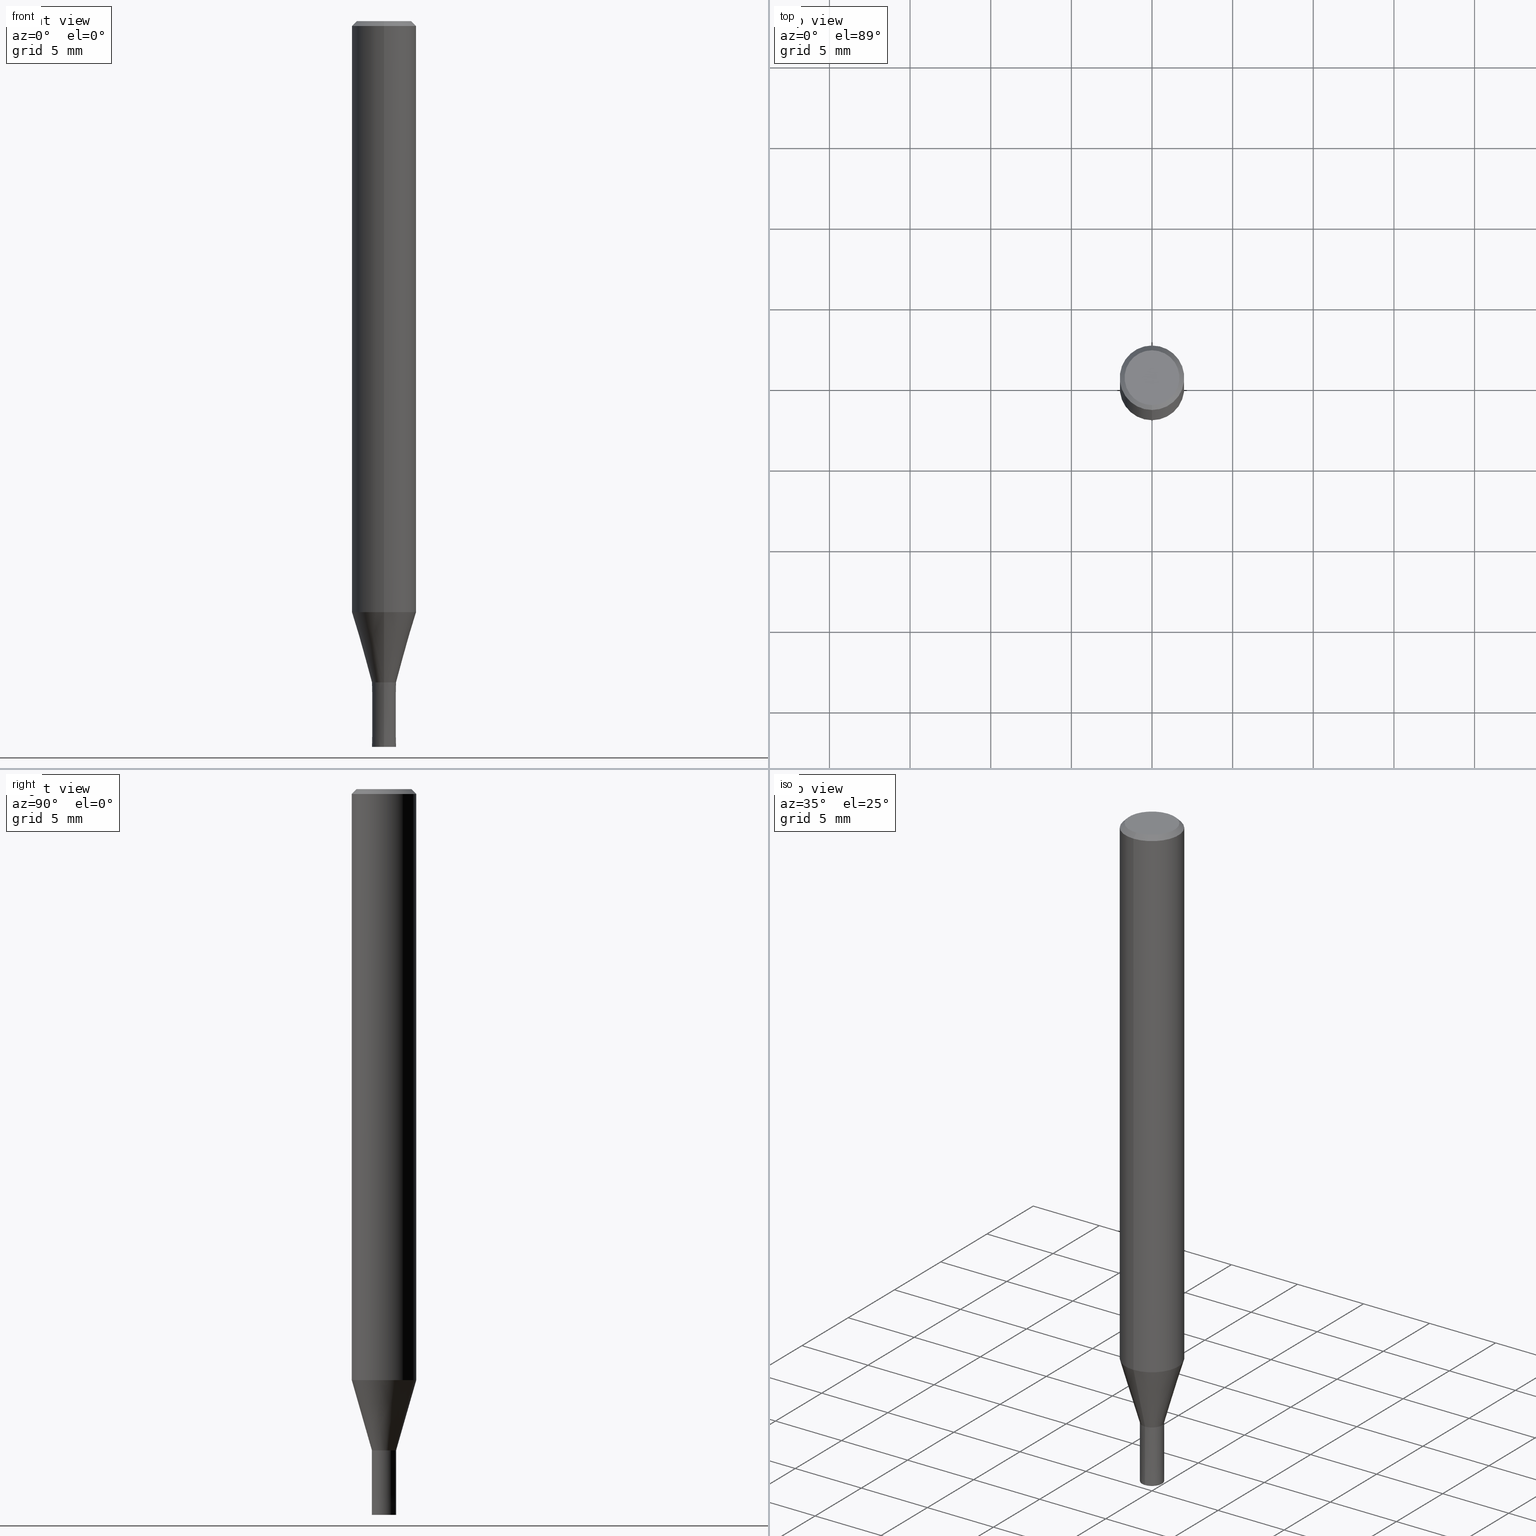
[diagram: canonical four-view strip — front | top / right | iso, engineering-drawing reading convention]
A machine part, canonical four-view strip (front | top / right | iso — engineering-drawing reading convention). The complete STEP part file that produces these views, byte-faithful:
ISO-10303-21;
HEADER;
FILE_DESCRIPTION(('no description'),'unknown implementation level');
FILE_NAME('HMS3015-0400-Huellk.stp','  ',('CIMSOURCE GmbH'),('CADClick - KiM GmbH - www.kimweb.de'),'unknown preprocess','ACIS','unknown authorization');
FILE_SCHEMA(('automotive_design'));
ENDSEC;
DATA;
#1=MECHANICAL_DESIGN_GEOMETRIC_PRESENTATION_REPRESENTATION(' ',(#14,#15,#16,#17,#18,#19,#20,#21,#22,#23,#24,#25,#26,#27,#28,#29,#30,#31,#32,#33,#34,#35,#36,#37,#38,#39,#40,#41,#42,#43,#44,#45,#46,#47,#48,#49,#50,#51,#52,#53,#54,#55,#56,#57,#58,#59,#60,#61,#62,#63,#64,#65,#66,#67,#68,#69,#70,#71,#72,#73,#74,#75,#76,#77,#78,#79,#80,#81,#82,#83,#84,#85,#86,#87,#88,#89),#10);
#2=PRODUCT_DEFINITION_CONTEXT('',#90,'design');
#3=APPLICATION_PROTOCOL_DEFINITION('INTERNATIONAL STANDARD','automotive_design',1994,#90);
#4=PRODUCT_CATEGORY_RELATIONSHIP('NONE','NONE',#91,#92);
#5=SHAPE_DEFINITION_REPRESENTATION(#93,#94);
#6=PRODUCT_DEFINITION_CONTEXT('',#95,'design');
#7=APPLICATION_PROTOCOL_DEFINITION('INTERNATIONAL STANDARD','automotive_design',1994,#95);
#8=PRODUCT_CATEGORY_RELATIONSHIP('NONE','NONE',#96,#97);
#9=SHAPE_DEFINITION_REPRESENTATION(#98,#99);
#10= (GEOMETRIC_REPRESENTATION_CONTEXT(3)GLOBAL_UNCERTAINTY_ASSIGNED_CONTEXT((#102))GLOBAL_UNIT_ASSIGNED_CONTEXT((#104,#105,#106))REPRESENTATION_CONTEXT('NONE','WORKSPACE'));
#14=STYLED_ITEM('',(#108),#109);
#15=STYLED_ITEM('',(#110),#111);
#16=STYLED_ITEM('',(#112),#113);
#17=STYLED_ITEM('',(#114),#115);
#18=STYLED_ITEM('',(#116),#117);
#19=STYLED_ITEM('',(#118),#119);
#20=STYLED_ITEM('',(#120),#121);
#21=STYLED_ITEM('',(#122),#123);
#22=STYLED_ITEM('',(#124),#125);
#23=STYLED_ITEM('',(#126),#127);
#24=STYLED_ITEM('',(#128),#129);
#25=STYLED_ITEM('',(#130),#131);
#26=STYLED_ITEM('',(#132),#133);
#27=STYLED_ITEM('',(#134),#135);
#28=STYLED_ITEM('',(#136),#137);
#29=STYLED_ITEM('',(#138),#139);
#30=STYLED_ITEM('',(#140),#141);
#31=STYLED_ITEM('',(#142),#143);
#32=STYLED_ITEM('',(#144),#145);
#33=STYLED_ITEM('',(#146),#147);
#34=STYLED_ITEM('',(#148),#149);
#35=STYLED_ITEM('',(#150),#151);
#36=STYLED_ITEM('',(#152),#153);
#37=STYLED_ITEM('',(#154),#155);
#38=STYLED_ITEM('',(#156),#157);
#39=STYLED_ITEM('',(#158),#159);
#40=STYLED_ITEM('',(#160),#161);
#41=STYLED_ITEM('',(#162),#163);
#42=STYLED_ITEM('',(#164),#165);
#43=STYLED_ITEM('',(#166),#167);
#44=STYLED_ITEM('',(#168),#169);
#45=STYLED_ITEM('',(#170),#171);
#46=STYLED_ITEM('',(#172),#173);
#47=STYLED_ITEM('',(#174),#175);
#48=STYLED_ITEM('',(#176),#177);
#49=STYLED_ITEM('',(#178),#179);
#50=STYLED_ITEM('',(#180),#181);
#51=STYLED_ITEM('',(#182),#183);
#52=STYLED_ITEM('',(#184),#185);
#53=STYLED_ITEM('',(#186),#187);
#54=STYLED_ITEM('',(#188),#189);
#55=STYLED_ITEM('',(#190),#191);
#56=STYLED_ITEM('',(#192),#193);
#57=STYLED_ITEM('',(#194),#195);
#58=STYLED_ITEM('',(#196),#197);
#59=STYLED_ITEM('',(#198),#199);
#60=STYLED_ITEM('',(#200),#201);
#61=STYLED_ITEM('',(#202),#203);
#62=STYLED_ITEM('',(#204),#205);
#63=STYLED_ITEM('',(#206),#207);
#64=STYLED_ITEM('',(#208),#209);
#65=STYLED_ITEM('',(#210),#211);
#66=STYLED_ITEM('',(#212),#213);
#67=STYLED_ITEM('',(#214),#215);
#68=STYLED_ITEM('',(#216),#217);
#69=STYLED_ITEM('',(#218),#219);
#70=STYLED_ITEM('',(#220),#221);
#71=STYLED_ITEM('',(#222),#223);
#72=STYLED_ITEM('',(#224),#225);
#73=STYLED_ITEM('',(#226),#227);
#74=STYLED_ITEM('',(#228),#229);
#75=STYLED_ITEM('',(#230),#231);
#76=STYLED_ITEM('',(#232),#233);
#77=STYLED_ITEM('',(#234),#235);
#78=STYLED_ITEM('',(#236),#237);
#79=STYLED_ITEM('',(#238),#239);
#80=STYLED_ITEM('',(#240),#241);
#81=STYLED_ITEM('',(#242),#243);
#82=STYLED_ITEM('',(#244),#245);
#83=STYLED_ITEM('',(#246),#247);
#84=STYLED_ITEM('',(#248),#249);
#85=STYLED_ITEM('',(#250),#251);
#86=STYLED_ITEM('',(#252),#253);
#87=STYLED_ITEM('',(#254),#255);
#88=STYLED_ITEM('',(#256),#257);
#89=STYLED_ITEM('',(#258),#259);
#90=APPLICATION_CONTEXT(' ');
#91=PRODUCT_CATEGORY('part','NONE');
#92=PRODUCT_RELATED_PRODUCT_CATEGORY('detail',' ',(#260));
#93=PRODUCT_DEFINITION_SHAPE('NONE','NONE',#261);
#94=ADVANCED_BREP_SHAPE_REPRESENTATION('1',(#159,#262),#10);
#95=APPLICATION_CONTEXT(' ');
#96=PRODUCT_CATEGORY('part','NONE');
#97=PRODUCT_RELATED_PRODUCT_CATEGORY('detail',' ',(#263));
#98=PRODUCT_DEFINITION_SHAPE('NONE','NONE',#264);
#99=ADVANCED_BREP_SHAPE_REPRESENTATION('2',(#205,#265),#10);
#102=UNCERTAINTY_MEASURE_WITH_UNIT(LENGTH_MEASURE(1.0E-006),#104,'','');
#104= (CONVERSION_BASED_UNIT('MILLIMETRE',#268)LENGTH_UNIT()NAMED_UNIT(#271));
#105= (NAMED_UNIT(#273)PLANE_ANGLE_UNIT()SI_UNIT($,.RADIAN.));
#106= (NAMED_UNIT(#273)SOLID_ANGLE_UNIT()SI_UNIT($,.STERADIAN.));
#108=PRESENTATION_STYLE_ASSIGNMENT((#279));
#109=EDGE_CURVE('',#127,#119,#280,.T.);
#110=PRESENTATION_STYLE_ASSIGNMENT((#281));
#111=EDGE_CURVE('',#189,#233,#282,.T.);
#112=PRESENTATION_STYLE_ASSIGNMENT((#283));
#113=EDGE_CURVE('',#189,#255,#284,.T.);
#114=PRESENTATION_STYLE_ASSIGNMENT((#285));
#115=VERTEX_POINT('',#286);
#116=PRESENTATION_STYLE_ASSIGNMENT((#287));
#117=EDGE_CURVE('',#157,#197,#288,.T.);
#118=PRESENTATION_STYLE_ASSIGNMENT((#289));
#119=VERTEX_POINT('',#290);
#120=PRESENTATION_STYLE_ASSIGNMENT((#291));
#121=EDGE_CURVE('',#197,#157,#292,.T.);
#122=PRESENTATION_STYLE_ASSIGNMENT((#293));
#123=ADVANCED_FACE('',(#294),#295,.T.);
#124=PRESENTATION_STYLE_ASSIGNMENT((#296));
#125=ADVANCED_FACE('',(#297),#298,.F.);
#126=PRESENTATION_STYLE_ASSIGNMENT((#299));
#127=VERTEX_POINT('',#300);
#128=PRESENTATION_STYLE_ASSIGNMENT((#301));
#129=VERTEX_POINT('',#302);
#130=PRESENTATION_STYLE_ASSIGNMENT((#303));
#131=ADVANCED_FACE('',(#304),#305,.T.);
#132=PRESENTATION_STYLE_ASSIGNMENT((#306));
#133=ADVANCED_FACE('',(#307,#308),#309,.T.);
#134=PRESENTATION_STYLE_ASSIGNMENT((#310));
#135=VERTEX_POINT('',#311);
#136=PRESENTATION_STYLE_ASSIGNMENT((#312));
#137=ADVANCED_FACE('',(#313),#314,.T.);
#138=PRESENTATION_STYLE_ASSIGNMENT((#315));
#139=ADVANCED_FACE('',(#316),#317,.F.);
#140=PRESENTATION_STYLE_ASSIGNMENT((#318));
#141=EDGE_CURVE('',#201,#243,#319,.T.);
#142=PRESENTATION_STYLE_ASSIGNMENT((#320));
#143=EDGE_CURVE('',#135,#179,#321,.T.);
#144=PRESENTATION_STYLE_ASSIGNMENT((#322));
#145=VERTEX_POINT('',#323);
#146=PRESENTATION_STYLE_ASSIGNMENT((#324));
#147=EDGE_CURVE('',#179,#135,#325,.T.);
#148=PRESENTATION_STYLE_ASSIGNMENT((#326));
#149=ADVANCED_FACE('',(#327,#328),#329,.T.);
#150=PRESENTATION_STYLE_ASSIGNMENT((#330));
#151=EDGE_CURVE('',#255,#221,#331,.T.);
#152=PRESENTATION_STYLE_ASSIGNMENT((#332));
#153=EDGE_CURVE('',#185,#213,#333,.T.);
#154=PRESENTATION_STYLE_ASSIGNMENT((#334));
#155=EDGE_CURVE('',#221,#233,#335,.T.);
#156=PRESENTATION_STYLE_ASSIGNMENT((#336));
#157=VERTEX_POINT('',#337);
#158=PRESENTATION_STYLE_ASSIGNMENT((#338));
#159=MANIFOLD_SOLID_BREP('1',#339);
#160=PRESENTATION_STYLE_ASSIGNMENT((#340));
#161=VERTEX_POINT('',#341);
#162=PRESENTATION_STYLE_ASSIGNMENT((#342));
#163=ADVANCED_FACE('',(#343),#344,.T.);
#164=PRESENTATION_STYLE_ASSIGNMENT((#345));
#165=EDGE_CURVE('',#161,#241,#346,.T.);
#166=PRESENTATION_STYLE_ASSIGNMENT((#347));
#167=ADVANCED_FACE('',(#348),#349,.T.);
#168=PRESENTATION_STYLE_ASSIGNMENT((#350));
#169=EDGE_CURVE('',#119,#135,#351,.T.);
#170=PRESENTATION_STYLE_ASSIGNMENT((#352));
#171=EDGE_CURVE('',#185,#129,#353,.T.);
#172=PRESENTATION_STYLE_ASSIGNMENT((#354));
#173=EDGE_CURVE('',#127,#251,#355,.T.);
#174=PRESENTATION_STYLE_ASSIGNMENT((#356));
#175=EDGE_CURVE('',#199,#129,#357,.T.);
#176=PRESENTATION_STYLE_ASSIGNMENT((#358));
#177=ADVANCED_FACE('',(#359),#360,.T.);
#178=PRESENTATION_STYLE_ASSIGNMENT((#361));
#179=VERTEX_POINT('',#362);
#180=PRESENTATION_STYLE_ASSIGNMENT((#363));
#181=EDGE_CURVE('',#129,#185,#364,.T.);
#182=PRESENTATION_STYLE_ASSIGNMENT((#365));
#183=EDGE_CURVE('',#119,#115,#366,.T.);
#184=PRESENTATION_STYLE_ASSIGNMENT((#367));
#185=VERTEX_POINT('',#368);
#186=PRESENTATION_STYLE_ASSIGNMENT((#369));
#187=EDGE_CURVE('',#243,#201,#370,.T.);
#188=PRESENTATION_STYLE_ASSIGNMENT((#371));
#189=VERTEX_POINT('',#372);
#190=PRESENTATION_STYLE_ASSIGNMENT((#373));
#191=EDGE_CURVE('',#179,#115,#374,.T.);
#192=PRESENTATION_STYLE_ASSIGNMENT((#375));
#193=EDGE_CURVE('',#115,#119,#376,.T.);
#194=PRESENTATION_STYLE_ASSIGNMENT((#377));
#195=ADVANCED_FACE('',(#378),#379,.T.);
#196=PRESENTATION_STYLE_ASSIGNMENT((#380));
#197=VERTEX_POINT('',#381);
#198=PRESENTATION_STYLE_ASSIGNMENT((#382));
#199=VERTEX_POINT('',#383);
#200=PRESENTATION_STYLE_ASSIGNMENT((#384));
#201=VERTEX_POINT('',#385);
#202=PRESENTATION_STYLE_ASSIGNMENT((#386));
#203=ADVANCED_FACE('',(#387),#388,.T.);
#204=PRESENTATION_STYLE_ASSIGNMENT((#389));
#205=MANIFOLD_SOLID_BREP('2',#390);
#206=PRESENTATION_STYLE_ASSIGNMENT((#391));
#207=ADVANCED_FACE('',(#392),#393,.T.);
#208=PRESENTATION_STYLE_ASSIGNMENT((#394));
#209=EDGE_CURVE('',#233,#189,#395,.T.);
#210=PRESENTATION_STYLE_ASSIGNMENT((#396));
#211=EDGE_CURVE('',#241,#145,#397,.T.);
#212=PRESENTATION_STYLE_ASSIGNMENT((#398));
#213=VERTEX_POINT('',#399);
#214=PRESENTATION_STYLE_ASSIGNMENT((#400));
#215=EDGE_CURVE('',#251,#127,#401,.T.);
#216=PRESENTATION_STYLE_ASSIGNMENT((#402));
#217=EDGE_CURVE('',#145,#245,#403,.T.);
#218=PRESENTATION_STYLE_ASSIGNMENT((#404));
#219=EDGE_CURVE('',#245,#161,#405,.T.);
#220=PRESENTATION_STYLE_ASSIGNMENT((#406));
#221=VERTEX_POINT('',#407);
#222=PRESENTATION_STYLE_ASSIGNMENT((#408));
#223=EDGE_CURVE('',#243,#157,#409,.T.);
#224=PRESENTATION_STYLE_ASSIGNMENT((#410));
#225=ADVANCED_FACE('',(#411),#412,.T.);
#226=PRESENTATION_STYLE_ASSIGNMENT((#413));
#227=EDGE_CURVE('',#221,#255,#414,.T.);
#228=PRESENTATION_STYLE_ASSIGNMENT((#415));
#229=EDGE_CURVE('',#213,#199,#416,.T.);
#230=PRESENTATION_STYLE_ASSIGNMENT((#417));
#231=EDGE_CURVE('',#199,#213,#418,.T.);
#232=PRESENTATION_STYLE_ASSIGNMENT((#419));
#233=VERTEX_POINT('',#420);
#234=PRESENTATION_STYLE_ASSIGNMENT((#421));
#235=EDGE_CURVE('',#161,#245,#422,.T.);
#236=PRESENTATION_STYLE_ASSIGNMENT((#423));
#237=ADVANCED_FACE('',(#424,#425),#426,.T.);
#238=PRESENTATION_STYLE_ASSIGNMENT((#427));
#239=ADVANCED_FACE('',(#428),#429,.T.);
#240=PRESENTATION_STYLE_ASSIGNMENT((#430));
#241=VERTEX_POINT('',#431);
#242=PRESENTATION_STYLE_ASSIGNMENT((#432));
#243=VERTEX_POINT('',#433);
#244=PRESENTATION_STYLE_ASSIGNMENT((#434));
#245=VERTEX_POINT('',#435);
#246=PRESENTATION_STYLE_ASSIGNMENT((#436));
#247=ADVANCED_FACE('',(#437,#438),#439,.T.);
#248=PRESENTATION_STYLE_ASSIGNMENT((#440));
#249=ADVANCED_FACE('',(#441),#442,.T.);
#250=PRESENTATION_STYLE_ASSIGNMENT((#443));
#251=VERTEX_POINT('',#444);
#252=PRESENTATION_STYLE_ASSIGNMENT((#445));
#253=EDGE_CURVE('',#115,#251,#446,.T.);
#254=PRESENTATION_STYLE_ASSIGNMENT((#447));
#255=VERTEX_POINT('',#448);
#256=PRESENTATION_STYLE_ASSIGNMENT((#449));
#257=EDGE_CURVE('',#145,#241,#450,.T.);
#258=PRESENTATION_STYLE_ASSIGNMENT((#451));
#259=EDGE_CURVE('',#197,#201,#452,.T.);
#260=PRODUCT('1','1','PART-1-DESC',(#453));
#261=PRODUCT_DEFINITION('NONE','NONE',#454,#2);
#262=AXIS2_PLACEMENT_3D('',#455,#456,#457);
#263=PRODUCT('2','2','PART-2-DESC',(#458));
#264=PRODUCT_DEFINITION('NONE','NONE',#459,#6);
#265=AXIS2_PLACEMENT_3D('',#460,#461,#462);
#268=LENGTH_MEASURE_WITH_UNIT(LENGTH_MEASURE(1.0),#463);
#271=DIMENSIONAL_EXPONENTS(1.0,0.0,0.0,0.0,0.0,0.0,0.0);
#273=DIMENSIONAL_EXPONENTS(0.0,0.0,0.0,0.0,0.0,0.0,0.0);
#279=CURVE_STYLE('',#464,POSITIVE_LENGTH_MEASURE(1.0E-006),#465);
#280=LINE('',#466,#467);
#281=CURVE_STYLE('',#468,POSITIVE_LENGTH_MEASURE(1.0E-006),#469);
#282=CIRCLE('',#470,0.3375);
#283=CURVE_STYLE('',#471,POSITIVE_LENGTH_MEASURE(1.0E-006),#472);
#284=LINE('',#473,#474);
#285=POINT_STYLE(' ',#475,POSITIVE_LENGTH_MEASURE(1.0E-006),#476);
#286=CARTESIAN_POINT('',(2.44921270764475E-016,-2.0,-0.299999999999997));
#287=CURVE_STYLE('',#477,POSITIVE_LENGTH_MEASURE(1.0E-006),#478);
#288=CIRCLE('',#479,0.3375);
#289=POINT_STYLE(' ',#480,POSITIVE_LENGTH_MEASURE(1.0E-006),#481);
#290=CARTESIAN_POINT('',(0.0,2.0,-0.299999999999997));
#291=CURVE_STYLE('',#482,POSITIVE_LENGTH_MEASURE(1.0E-006),#483);
#292=CIRCLE('',#484,0.3375);
#293=SURFACE_STYLE_USAGE(.BOTH.,#485);
#294=FACE_OUTER_BOUND('',#486,.T.);
#295=PLANE('',#487);
#296=SURFACE_STYLE_USAGE(.BOTH.,#488);
#297=FACE_OUTER_BOUND('',#489,.T.);
#298=CYLINDRICAL_SURFACE('',#490,0.3375);
#299=POINT_STYLE(' ',#491,POSITIVE_LENGTH_MEASURE(1.0E-006),#492);
#300=CARTESIAN_POINT('',(0.0,1.7,0.0));
#301=POINT_STYLE(' ',#493,POSITIVE_LENGTH_MEASURE(1.0E-006),#494);
#302=CARTESIAN_POINT('',(9.18332304731401E-017,-0.7499,-41.0));
#303=SURFACE_STYLE_USAGE(.BOTH.,#495);
#304=FACE_OUTER_BOUND('',#496,.T.);
#305=CYLINDRICAL_SURFACE('',#497,0.3375);
#306=SURFACE_STYLE_USAGE(.BOTH.,#498);
#307=FACE_OUTER_BOUND('',#499,.T.);
#308=FACE_BOUND('',#500,.T.);
#309=PLANE('',#501);
#310=POINT_STYLE(' ',#502,POSITIVE_LENGTH_MEASURE(1.0E-006),#503);
#311=CARTESIAN_POINT('',(0.0,2.0,-36.641));
#312=SURFACE_STYLE_USAGE(.BOTH.,#504);
#313=FACE_OUTER_BOUND('',#505,.T.);
#314=CYLINDRICAL_SURFACE('',#506,2.0);
#315=SURFACE_STYLE_USAGE(.BOTH.,#507);
#316=FACE_OUTER_BOUND('',#508,.T.);
#317=CYLINDRICAL_SURFACE('',#509,0.3375);
#318=CURVE_STYLE('',#510,POSITIVE_LENGTH_MEASURE(1.0E-006),#511);
#319=CIRCLE('',#512,0.3375);
#320=CURVE_STYLE('',#513,POSITIVE_LENGTH_MEASURE(1.0E-006),#514);
#321=CIRCLE('',#515,2.0);
#322=POINT_STYLE(' ',#516,POSITIVE_LENGTH_MEASURE(1.0E-006),#517);
#323=CARTESIAN_POINT('',(0.0,1.99995,-36.641));
#324=CURVE_STYLE('',#518,POSITIVE_LENGTH_MEASURE(1.0E-006),#519);
#325=CIRCLE('',#520,2.0);
#326=SURFACE_STYLE_USAGE(.BOTH.,#521);
#327=FACE_BOUND('',#522,.T.);
#328=FACE_OUTER_BOUND('',#523,.T.);
#329=PLANE('',#524);
#330=CURVE_STYLE('',#525,POSITIVE_LENGTH_MEASURE(1.0E-006),#526);
#331=CIRCLE('',#527,0.3375);
#332=CURVE_STYLE('',#528,POSITIVE_LENGTH_MEASURE(1.0E-006),#529);
#333=LINE('',#530,#531);
#334=CURVE_STYLE('',#532,POSITIVE_LENGTH_MEASURE(1.0E-006),#533);
#335=LINE('',#534,#535);
#336=POINT_STYLE(' ',#536,POSITIVE_LENGTH_MEASURE(1.0E-006),#537);
#337=CARTESIAN_POINT('',(4.13304644415052E-017,-0.3375,-41.0));
#338=SURFACE_STYLE_USAGE(.BOTH.,#538);
#339=CLOSED_SHELL('',(#167,#225,#137,#239,#133,#195,#249,#163,#203,#149,#131,#123));
#340=POINT_STYLE(' ',#539,POSITIVE_LENGTH_MEASURE(1.0E-006),#540);
#341=CARTESIAN_POINT('',(9.18393535049092E-017,-0.74995,-41.0));
#342=SURFACE_STYLE_USAGE(.BOTH.,#541);
#343=FACE_OUTER_BOUND('',#542,.T.);
#344=CYLINDRICAL_SURFACE('',#543,2.0);
#345=CURVE_STYLE('',#544,POSITIVE_LENGTH_MEASURE(1.0E-006),#545);
#346=LINE('',#546,#547);
#347=SURFACE_STYLE_USAGE(.BOTH.,#548);
#348=FACE_OUTER_BOUND('',#549,.T.);
#349=CYLINDRICAL_SURFACE('',#550,0.3375);
#350=CURVE_STYLE('',#551,POSITIVE_LENGTH_MEASURE(1.0E-006),#552);
#351=LINE('',#553,#554);
#352=CURVE_STYLE('',#555,POSITIVE_LENGTH_MEASURE(1.0E-006),#556);
#353=CIRCLE('',#557,0.7499);
#354=CURVE_STYLE('',#558,POSITIVE_LENGTH_MEASURE(1.0E-006),#559);
#355=CIRCLE('',#560,1.7);
#356=CURVE_STYLE('',#561,POSITIVE_LENGTH_MEASURE(1.0E-006),#562);
#357=LINE('',#563,#564);
#358=SURFACE_STYLE_USAGE(.BOTH.,#565);
#359=FACE_OUTER_BOUND('',#566,.T.);
#360=CONICAL_SURFACE('',#567,0.74995,2.49999999947889E-005);
#361=POINT_STYLE(' ',#568,POSITIVE_LENGTH_MEASURE(1.0E-006),#569);
#362=CARTESIAN_POINT('',(2.44921270764475E-016,-2.0,-36.641));
#363=CURVE_STYLE('',#570,POSITIVE_LENGTH_MEASURE(1.0E-006),#571);
#364=CIRCLE('',#572,0.7499);
#365=CURVE_STYLE('',#573,POSITIVE_LENGTH_MEASURE(1.0E-006),#574);
#366=CIRCLE('',#575,2.0);
#367=POINT_STYLE(' ',#576,POSITIVE_LENGTH_MEASURE(1.0E-006),#577);
#368=CARTESIAN_POINT('',(0.0,0.7499,-41.0));
#369=CURVE_STYLE('',#578,POSITIVE_LENGTH_MEASURE(1.0E-006),#579);
#370=CIRCLE('',#580,0.3375);
#371=POINT_STYLE(' ',#581,POSITIVE_LENGTH_MEASURE(1.0E-006),#582);
#372=CARTESIAN_POINT('',(4.13304644415052E-017,-0.3375,-44.9));
#373=CURVE_STYLE('',#583,POSITIVE_LENGTH_MEASURE(1.0E-006),#584);
#374=LINE('',#585,#586);
#375=CURVE_STYLE('',#587,POSITIVE_LENGTH_MEASURE(1.0E-006),#588);
#376=CIRCLE('',#589,2.0);
#377=SURFACE_STYLE_USAGE(.BOTH.,#590);
#378=FACE_OUTER_BOUND('',#591,.T.);
#379=PLANE('',#592);
#380=POINT_STYLE(' ',#593,POSITIVE_LENGTH_MEASURE(1.0E-006),#594);
#381=CARTESIAN_POINT('',(0.0,0.3375,-41.0));
#382=POINT_STYLE(' ',#595,POSITIVE_LENGTH_MEASURE(1.0E-006),#596);
#383=CARTESIAN_POINT('',(9.18454765366783E-017,-0.75,-45.0));
#384=POINT_STYLE(' ',#597,POSITIVE_LENGTH_MEASURE(1.0E-006),#598);
#385=CARTESIAN_POINT('',(0.0,0.3375,-45.0));
#386=SURFACE_STYLE_USAGE(.BOTH.,#599);
#387=FACE_OUTER_BOUND('',#600,.T.);
#388=CONICAL_SURFACE('',#601,1.37495,0.279268973819818);
#389=SURFACE_STYLE_USAGE(.BOTH.,#602);
#390=CLOSED_SHELL('',(#125,#207,#247,#177,#237,#139));
#391=SURFACE_STYLE_USAGE(.BOTH.,#603);
#392=FACE_OUTER_BOUND('',#604,.T.);
#393=CONICAL_SURFACE('',#605,0.74995,2.49999999947889E-005);
#394=CURVE_STYLE('',#606,POSITIVE_LENGTH_MEASURE(1.0E-006),#607);
#395=CIRCLE('',#608,0.3375);
#396=CURVE_STYLE('',#609,POSITIVE_LENGTH_MEASURE(1.0E-006),#610);
#397=CIRCLE('',#611,1.99995);
#398=POINT_STYLE(' ',#612,POSITIVE_LENGTH_MEASURE(1.0E-006),#613);
#399=CARTESIAN_POINT('',(0.0,0.75,-45.0));
#400=CURVE_STYLE('',#614,POSITIVE_LENGTH_MEASURE(1.0E-006),#615);
#401=CIRCLE('',#616,1.7);
#402=CURVE_STYLE('',#617,POSITIVE_LENGTH_MEASURE(1.0E-006),#618);
#403=LINE('',#619,#620);
#404=CURVE_STYLE('',#621,POSITIVE_LENGTH_MEASURE(1.0E-006),#622);
#405=CIRCLE('',#623,0.74995);
#406=POINT_STYLE(' ',#624,POSITIVE_LENGTH_MEASURE(1.0E-006),#625);
#407=CARTESIAN_POINT('',(0.0,0.3375,-41.0));
#408=CURVE_STYLE('',#626,POSITIVE_LENGTH_MEASURE(1.0E-006),#627);
#409=LINE('',#628,#629);
#410=SURFACE_STYLE_USAGE(.BOTH.,#630);
#411=FACE_OUTER_BOUND('',#631,.T.);
#412=CONICAL_SURFACE('',#632,1.37495,0.279268973819818);
#413=CURVE_STYLE('',#633,POSITIVE_LENGTH_MEASURE(1.0E-006),#634);
#414=CIRCLE('',#635,0.3375);
#415=CURVE_STYLE('',#636,POSITIVE_LENGTH_MEASURE(1.0E-006),#637);
#416=CIRCLE('',#638,0.75);
#417=CURVE_STYLE('',#639,POSITIVE_LENGTH_MEASURE(1.0E-006),#640);
#418=CIRCLE('',#641,0.75);
#419=POINT_STYLE(' ',#642,POSITIVE_LENGTH_MEASURE(1.0E-006),#643);
#420=CARTESIAN_POINT('',(0.0,0.3375,-44.9));
#421=CURVE_STYLE('',#644,POSITIVE_LENGTH_MEASURE(1.0E-006),#645);
#422=CIRCLE('',#646,0.74995);
#423=SURFACE_STYLE_USAGE(.BOTH.,#647);
#424=FACE_OUTER_BOUND('',#648,.T.);
#425=FACE_BOUND('',#649,.T.);
#426=PLANE('',#650);
#427=SURFACE_STYLE_USAGE(.BOTH.,#651);
#428=FACE_OUTER_BOUND('',#652,.T.);
#429=CONICAL_SURFACE('',#653,1.85,0.785398163397453);
#430=POINT_STYLE(' ',#654,POSITIVE_LENGTH_MEASURE(1.0E-006),#655);
#431=CARTESIAN_POINT('',(2.44915147732706E-016,-1.99995,-36.641));
#432=POINT_STYLE(' ',#656,POSITIVE_LENGTH_MEASURE(1.0E-006),#657);
#433=CARTESIAN_POINT('',(4.13304644415052E-017,-0.3375,-45.0));
#434=POINT_STYLE(' ',#658,POSITIVE_LENGTH_MEASURE(1.0E-006),#659);
#435=CARTESIAN_POINT('',(0.0,0.74995,-41.0));
#436=SURFACE_STYLE_USAGE(.BOTH.,#660);
#437=FACE_OUTER_BOUND('',#661,.T.);
#438=FACE_BOUND('',#662,.T.);
#439=PLANE('',#663);
#440=SURFACE_STYLE_USAGE(.BOTH.,#664);
#441=FACE_OUTER_BOUND('',#665,.T.);
#442=CONICAL_SURFACE('',#666,1.85,0.785398163397453);
#443=POINT_STYLE(' ',#667,POSITIVE_LENGTH_MEASURE(1.0E-006),#668);
#444=CARTESIAN_POINT('',(2.08183080149804E-016,-1.7,0.0));
#445=CURVE_STYLE('',#669,POSITIVE_LENGTH_MEASURE(1.0E-006),#670);
#446=LINE('',#671,#672);
#447=POINT_STYLE(' ',#673,POSITIVE_LENGTH_MEASURE(1.0E-006),#674);
#448=CARTESIAN_POINT('',(4.13304644415052E-017,-0.3375,-41.0));
#449=CURVE_STYLE('',#675,POSITIVE_LENGTH_MEASURE(1.0E-006),#676);
#450=CIRCLE('',#677,1.99995);
#451=CURVE_STYLE('',#678,POSITIVE_LENGTH_MEASURE(1.0E-006),#679);
#452=LINE('',#680,#681);
#453=PRODUCT_CONTEXT('',#90,'mechanical');
#454=PRODUCT_DEFINITION_FORMATION_WITH_SPECIFIED_SOURCE(' ','NONE',#260,.NOT_KNOWN.);
#455=CARTESIAN_POINT('',(0.0,0.0,0.0));
#456=DIRECTION('',(0.0,0.0,1.0));
#457=DIRECTION('',(1.0,0.0,0.0));
#458=PRODUCT_CONTEXT('',#95,'mechanical');
#459=PRODUCT_DEFINITION_FORMATION_WITH_SPECIFIED_SOURCE(' ','NONE',#263,.NOT_KNOWN.);
#460=CARTESIAN_POINT('',(0.0,0.0,0.0));
#461=DIRECTION('',(0.0,0.0,1.0));
#462=DIRECTION('',(1.0,0.0,0.0));
#463= (NAMED_UNIT(#271)LENGTH_UNIT()SI_UNIT(.MILLI.,.METRE.));
#464=DRAUGHTING_PRE_DEFINED_CURVE_FONT('continuous');
#465=COLOUR_RGB('',0.498039215803146,0.498039215803146,0.498039215803146);
#466=CARTESIAN_POINT('',(-2.2655217545714E-016,1.85,-0.149999999999999));
#467=VECTOR('',#683,1.0);
#468=DRAUGHTING_PRE_DEFINED_CURVE_FONT('continuous');
#469=COLOUR_RGB('',0.498039215803146,0.498039215803146,0.498039215803146);
#470=AXIS2_PLACEMENT_3D('',#684,#685,#686);
#471=DRAUGHTING_PRE_DEFINED_CURVE_FONT('continuous');
#472=COLOUR_RGB('',0.498039215803146,0.498039215803146,0.498039215803146);
#473=CARTESIAN_POINT('',(4.13304644415052E-017,-0.3375,-42.95));
#474=VECTOR('',#687,1.0);
#475=PRE_DEFINED_MARKER('');
#476=COLOUR_RGB('',0.498039215803146,0.498039215803146,0.498039215803146);
#477=DRAUGHTING_PRE_DEFINED_CURVE_FONT('continuous');
#478=COLOUR_RGB('',0.800000011920929,0.800000011920929,0.800000011920929);
#479=AXIS2_PLACEMENT_3D('',#688,#689,#690);
#480=PRE_DEFINED_MARKER('');
#481=COLOUR_RGB('',0.498039215803146,0.498039215803146,0.498039215803146);
#482=DRAUGHTING_PRE_DEFINED_CURVE_FONT('continuous');
#483=COLOUR_RGB('',0.800000011920929,0.800000011920929,0.800000011920929);
#484=AXIS2_PLACEMENT_3D('',#691,#692,#693);
#485=SURFACE_SIDE_STYLE('',(#694));
#486=EDGE_LOOP('',(#695,#696));
#487=AXIS2_PLACEMENT_3D('',#697,#698,#699);
#488=SURFACE_SIDE_STYLE('',(#700));
#489=EDGE_LOOP('',(#701,#702,#703,#704));
#490=AXIS2_PLACEMENT_3D('',#705,#706,#707);
#491=PRE_DEFINED_MARKER('');
#492=COLOUR_RGB('',0.498039215803146,0.498039215803146,0.498039215803146);
#493=PRE_DEFINED_MARKER('');
#494=COLOUR_RGB('',0.800000011920929,0.800000011920929,0.800000011920929);
#495=SURFACE_SIDE_STYLE('',(#708));
#496=EDGE_LOOP('',(#709,#710,#711,#712));
#497=AXIS2_PLACEMENT_3D('',#713,#714,#715);
#498=SURFACE_SIDE_STYLE('',(#716));
#499=EDGE_LOOP('',(#717,#718));
#500=EDGE_LOOP('',(#719,#720));
#501=AXIS2_PLACEMENT_3D('',#721,#722,#723);
#502=PRE_DEFINED_MARKER('');
#503=COLOUR_RGB('',0.498039215803146,0.498039215803146,0.498039215803146);
#504=SURFACE_SIDE_STYLE('',(#724));
#505=EDGE_LOOP('',(#725,#726,#727,#728));
#506=AXIS2_PLACEMENT_3D('',#729,#730,#731);
#507=SURFACE_SIDE_STYLE('',(#732));
#508=EDGE_LOOP('',(#733,#734,#735,#736));
#509=AXIS2_PLACEMENT_3D('',#737,#738,#739);
#510=DRAUGHTING_PRE_DEFINED_CURVE_FONT('continuous');
#511=COLOUR_RGB('',0.800000011920929,0.800000011920929,0.800000011920929);
#512=AXIS2_PLACEMENT_3D('',#740,#741,#742);
#513=DRAUGHTING_PRE_DEFINED_CURVE_FONT('continuous');
#514=COLOUR_RGB('',0.498039215803146,0.498039215803146,0.498039215803146);
#515=AXIS2_PLACEMENT_3D('',#743,#744,#745);
#516=PRE_DEFINED_MARKER('');
#517=COLOUR_RGB('',0.498039215803146,0.498039215803146,0.498039215803146);
#518=DRAUGHTING_PRE_DEFINED_CURVE_FONT('continuous');
#519=COLOUR_RGB('',0.498039215803146,0.498039215803146,0.498039215803146);
#520=AXIS2_PLACEMENT_3D('',#746,#747,#748);
#521=SURFACE_SIDE_STYLE('',(#749));
#522=EDGE_LOOP('',(#750,#751));
#523=EDGE_LOOP('',(#752,#753));
#524=AXIS2_PLACEMENT_3D('',#754,#755,#756);
#525=DRAUGHTING_PRE_DEFINED_CURVE_FONT('continuous');
#526=COLOUR_RGB('',0.498039215803146,0.498039215803146,0.498039215803146);
#527=AXIS2_PLACEMENT_3D('',#757,#758,#759);
#528=DRAUGHTING_PRE_DEFINED_CURVE_FONT('continuous');
#529=COLOUR_RGB('',0.800000011920929,0.800000011920929,0.800000011920929);
#530=CARTESIAN_POINT('',(-9.18393535049092E-017,0.74995,-43.0));
#531=VECTOR('',#760,1.0);
#532=DRAUGHTING_PRE_DEFINED_CURVE_FONT('continuous');
#533=COLOUR_RGB('',0.498039215803146,0.498039215803146,0.498039215803146);
#534=CARTESIAN_POINT('',(-4.13304644415052E-017,0.3375,-42.95));
#535=VECTOR('',#761,1.0);
#536=PRE_DEFINED_MARKER('');
#537=COLOUR_RGB('',0.800000011920929,0.800000011920929,0.800000011920929);
#538=SURFACE_SIDE_STYLE('',(#762));
#539=PRE_DEFINED_MARKER('');
#540=COLOUR_RGB('',0.498039215803146,0.498039215803146,0.498039215803146);
#541=SURFACE_SIDE_STYLE('',(#763));
#542=EDGE_LOOP('',(#764,#765,#766,#767));
#543=AXIS2_PLACEMENT_3D('',#768,#769,#770);
#544=DRAUGHTING_PRE_DEFINED_CURVE_FONT('continuous');
#545=COLOUR_RGB('',0.498039215803146,0.498039215803146,0.498039215803146);
#546=CARTESIAN_POINT('',(1.68377250618808E-016,-1.37495,-38.8205));
#547=VECTOR('',#771,1.0);
#548=SURFACE_SIDE_STYLE('',(#772));
#549=EDGE_LOOP('',(#773,#774,#775,#776));
#550=AXIS2_PLACEMENT_3D('',#777,#778,#779);
#551=DRAUGHTING_PRE_DEFINED_CURVE_FONT('continuous');
#552=COLOUR_RGB('',0.498039215803146,0.498039215803146,0.498039215803146);
#553=CARTESIAN_POINT('',(-2.44921270764475E-016,2.0,-18.4705));
#554=VECTOR('',#780,1.0);
#555=DRAUGHTING_PRE_DEFINED_CURVE_FONT('continuous');
#556=COLOUR_RGB('',0.800000011920929,0.800000011920929,0.800000011920929);
#557=AXIS2_PLACEMENT_3D('',#781,#782,#783);
#558=DRAUGHTING_PRE_DEFINED_CURVE_FONT('continuous');
#559=COLOUR_RGB('',0.498039215803146,0.498039215803146,0.498039215803146);
#560=AXIS2_PLACEMENT_3D('',#784,#785,#786);
#561=DRAUGHTING_PRE_DEFINED_CURVE_FONT('continuous');
#562=COLOUR_RGB('',0.800000011920929,0.800000011920929,0.800000011920929);
#563=CARTESIAN_POINT('',(9.18393535049092E-017,-0.74995,-43.0));
#564=VECTOR('',#787,1.0);
#565=SURFACE_SIDE_STYLE('',(#788));
#566=EDGE_LOOP('',(#789,#790,#791,#792));
#567=AXIS2_PLACEMENT_3D('',#793,#794,#795);
#568=PRE_DEFINED_MARKER('');
#569=COLOUR_RGB('',0.498039215803146,0.498039215803146,0.498039215803146);
#570=DRAUGHTING_PRE_DEFINED_CURVE_FONT('continuous');
#571=COLOUR_RGB('',0.800000011920929,0.800000011920929,0.800000011920929);
#572=AXIS2_PLACEMENT_3D('',#796,#797,#798);
#573=DRAUGHTING_PRE_DEFINED_CURVE_FONT('continuous');
#574=COLOUR_RGB('',0.498039215803146,0.498039215803146,0.498039215803146);
#575=AXIS2_PLACEMENT_3D('',#799,#800,#801);
#576=PRE_DEFINED_MARKER('');
#577=COLOUR_RGB('',0.800000011920929,0.800000011920929,0.800000011920929);
#578=DRAUGHTING_PRE_DEFINED_CURVE_FONT('continuous');
#579=COLOUR_RGB('',0.800000011920929,0.800000011920929,0.800000011920929);
#580=AXIS2_PLACEMENT_3D('',#802,#803,#804);
#581=PRE_DEFINED_MARKER('');
#582=COLOUR_RGB('',0.498039215803146,0.498039215803146,0.498039215803146);
#583=DRAUGHTING_PRE_DEFINED_CURVE_FONT('continuous');
#584=COLOUR_RGB('',0.498039215803146,0.498039215803146,0.498039215803146);
#585=CARTESIAN_POINT('',(2.44921270764475E-016,-2.0,-18.4705));
#586=VECTOR('',#805,1.0);
#587=DRAUGHTING_PRE_DEFINED_CURVE_FONT('continuous');
#588=COLOUR_RGB('',0.498039215803146,0.498039215803146,0.498039215803146);
#589=AXIS2_PLACEMENT_3D('',#806,#807,#808);
#590=SURFACE_SIDE_STYLE('',(#809));
#591=EDGE_LOOP('',(#810,#811));
#592=AXIS2_PLACEMENT_3D('',#812,#813,#814);
#593=PRE_DEFINED_MARKER('');
#594=COLOUR_RGB('',0.800000011920929,0.800000011920929,0.800000011920929);
#595=PRE_DEFINED_MARKER('');
#596=COLOUR_RGB('',0.800000011920929,0.800000011920929,0.800000011920929);
#597=PRE_DEFINED_MARKER('');
#598=COLOUR_RGB('',0.800000011920929,0.800000011920929,0.800000011920929);
#599=SURFACE_SIDE_STYLE('',(#815));
#600=EDGE_LOOP('',(#816,#817,#818,#819));
#601=AXIS2_PLACEMENT_3D('',#820,#821,#822);
#602=SURFACE_SIDE_STYLE('',(#823));
#603=SURFACE_SIDE_STYLE('',(#824));
#604=EDGE_LOOP('',(#825,#826,#827,#828));
#605=AXIS2_PLACEMENT_3D('',#829,#830,#831);
#606=DRAUGHTING_PRE_DEFINED_CURVE_FONT('continuous');
#607=COLOUR_RGB('',0.498039215803146,0.498039215803146,0.498039215803146);
#608=AXIS2_PLACEMENT_3D('',#832,#833,#834);
#609=DRAUGHTING_PRE_DEFINED_CURVE_FONT('continuous');
#610=COLOUR_RGB('',0.498039215803146,0.498039215803146,0.498039215803146);
#611=AXIS2_PLACEMENT_3D('',#835,#836,#837);
#612=PRE_DEFINED_MARKER('');
#613=COLOUR_RGB('',0.800000011920929,0.800000011920929,0.800000011920929);
#614=DRAUGHTING_PRE_DEFINED_CURVE_FONT('continuous');
#615=COLOUR_RGB('',0.498039215803146,0.498039215803146,0.498039215803146);
#616=AXIS2_PLACEMENT_3D('',#838,#839,#840);
#617=DRAUGHTING_PRE_DEFINED_CURVE_FONT('continuous');
#618=COLOUR_RGB('',0.498039215803146,0.498039215803146,0.498039215803146);
#619=CARTESIAN_POINT('',(-1.68377250618808E-016,1.37495,-38.8205));
#620=VECTOR('',#841,1.0);
#621=DRAUGHTING_PRE_DEFINED_CURVE_FONT('continuous');
#622=COLOUR_RGB('',0.498039215803146,0.498039215803146,0.498039215803146);
#623=AXIS2_PLACEMENT_3D('',#842,#843,#844);
#624=PRE_DEFINED_MARKER('');
#625=COLOUR_RGB('',0.498039215803146,0.498039215803146,0.498039215803146);
#626=DRAUGHTING_PRE_DEFINED_CURVE_FONT('continuous');
#627=COLOUR_RGB('',0.800000011920929,0.800000011920929,0.800000011920929);
#628=CARTESIAN_POINT('',(4.13304644415052E-017,-0.3375,-43.0));
#629=VECTOR('',#845,1.0);
#630=SURFACE_SIDE_STYLE('',(#846));
#631=EDGE_LOOP('',(#847,#848,#849,#850));
#632=AXIS2_PLACEMENT_3D('',#851,#852,#853);
#633=DRAUGHTING_PRE_DEFINED_CURVE_FONT('continuous');
#634=COLOUR_RGB('',0.498039215803146,0.498039215803146,0.498039215803146);
#635=AXIS2_PLACEMENT_3D('',#854,#855,#856);
#636=DRAUGHTING_PRE_DEFINED_CURVE_FONT('continuous');
#637=COLOUR_RGB('',0.800000011920929,0.800000011920929,0.800000011920929);
#638=AXIS2_PLACEMENT_3D('',#857,#858,#859);
#639=DRAUGHTING_PRE_DEFINED_CURVE_FONT('continuous');
#640=COLOUR_RGB('',0.800000011920929,0.800000011920929,0.800000011920929);
#641=AXIS2_PLACEMENT_3D('',#860,#861,#862);
#642=PRE_DEFINED_MARKER('');
#643=COLOUR_RGB('',0.498039215803146,0.498039215803146,0.498039215803146);
#644=DRAUGHTING_PRE_DEFINED_CURVE_FONT('continuous');
#645=COLOUR_RGB('',0.498039215803146,0.498039215803146,0.498039215803146);
#646=AXIS2_PLACEMENT_3D('',#863,#864,#865);
#647=SURFACE_SIDE_STYLE('',(#866));
#648=EDGE_LOOP('',(#867,#868));
#649=EDGE_LOOP('',(#869,#870));
#650=AXIS2_PLACEMENT_3D('',#871,#872,#873);
#651=SURFACE_SIDE_STYLE('',(#874));
#652=EDGE_LOOP('',(#875,#876,#877,#878));
#653=AXIS2_PLACEMENT_3D('',#879,#880,#881);
#654=PRE_DEFINED_MARKER('');
#655=COLOUR_RGB('',0.498039215803146,0.498039215803146,0.498039215803146);
#656=PRE_DEFINED_MARKER('');
#657=COLOUR_RGB('',0.800000011920929,0.800000011920929,0.800000011920929);
#658=PRE_DEFINED_MARKER('');
#659=COLOUR_RGB('',0.498039215803146,0.498039215803146,0.498039215803146);
#660=SURFACE_SIDE_STYLE('',(#882));
#661=EDGE_LOOP('',(#883,#884));
#662=EDGE_LOOP('',(#885,#886));
#663=AXIS2_PLACEMENT_3D('',#887,#888,#889);
#664=SURFACE_SIDE_STYLE('',(#890));
#665=EDGE_LOOP('',(#891,#892,#893,#894));
#666=AXIS2_PLACEMENT_3D('',#895,#896,#897);
#667=PRE_DEFINED_MARKER('');
#668=COLOUR_RGB('',0.498039215803146,0.498039215803146,0.498039215803146);
#669=DRAUGHTING_PRE_DEFINED_CURVE_FONT('continuous');
#670=COLOUR_RGB('',0.498039215803146,0.498039215803146,0.498039215803146);
#671=CARTESIAN_POINT('',(2.2655217545714E-016,-1.85,-0.149999999999999));
#672=VECTOR('',#898,1.0);
#673=PRE_DEFINED_MARKER('');
#674=COLOUR_RGB('',0.498039215803146,0.498039215803146,0.498039215803146);
#675=DRAUGHTING_PRE_DEFINED_CURVE_FONT('continuous');
#676=COLOUR_RGB('',0.498039215803146,0.498039215803146,0.498039215803146);
#677=AXIS2_PLACEMENT_3D('',#899,#900,#901);
#678=DRAUGHTING_PRE_DEFINED_CURVE_FONT('continuous');
#679=COLOUR_RGB('',0.800000011920929,0.800000011920929,0.800000011920929);
#680=CARTESIAN_POINT('',(-4.13304644415052E-017,0.3375,-43.0));
#681=VECTOR('',#902,1.0);
#683=DIRECTION('',(-8.6592745707194E-017,0.707106781186551,-0.707106781186544));
#684=CARTESIAN_POINT('',(0.0,0.0,-44.9));
#685=DIRECTION('',(0.0,0.0,-1.0));
#686=DIRECTION('',(0.0,1.0,0.0));
#687=DIRECTION('',(-0.0,-0.0,1.0));
#688=CARTESIAN_POINT('',(0.0,0.0,-41.0));
#689=DIRECTION('',(0.0,0.0,-1.0));
#690=DIRECTION('',(0.0,1.0,0.0));
#691=CARTESIAN_POINT('',(0.0,0.0,-41.0));
#692=DIRECTION('',(0.0,0.0,-1.0));
#693=DIRECTION('',(0.0,1.0,0.0));
#694=SURFACE_STYLE_FILL_AREA(#903);
#695=ORIENTED_EDGE('',*,*,#209,.T.);
#696=ORIENTED_EDGE('',*,*,#111,.T.);
#697=CARTESIAN_POINT('',(0.0,0.16875,-44.9));
#698=DIRECTION('',(0.0,0.0,-1.0));
#699=DIRECTION('',(0.0,1.0,0.0));
#700=SURFACE_STYLE_FILL_AREA(#904);
#701=ORIENTED_EDGE('',*,*,#259,.F.);
#702=ORIENTED_EDGE('',*,*,#117,.F.);
#703=ORIENTED_EDGE('',*,*,#223,.F.);
#704=ORIENTED_EDGE('',*,*,#187,.T.);
#705=CARTESIAN_POINT('',(0.0,0.0,-43.0));
#706=DIRECTION('',(-0.0,-0.0,1.0));
#707=DIRECTION('',(0.0,1.0,0.0));
#708=SURFACE_STYLE_FILL_AREA(#905);
#709=ORIENTED_EDGE('',*,*,#155,.T.);
#710=ORIENTED_EDGE('',*,*,#111,.F.);
#711=ORIENTED_EDGE('',*,*,#113,.T.);
#712=ORIENTED_EDGE('',*,*,#151,.T.);
#713=CARTESIAN_POINT('',(0.0,0.0,-42.95));
#714=DIRECTION('',(-0.0,-0.0,1.0));
#715=DIRECTION('',(0.0,1.0,0.0));
#716=SURFACE_STYLE_FILL_AREA(#906);
#717=ORIENTED_EDGE('',*,*,#143,.T.);
#718=ORIENTED_EDGE('',*,*,#147,.T.);
#719=ORIENTED_EDGE('',*,*,#257,.F.);
#720=ORIENTED_EDGE('',*,*,#211,.F.);
#721=CARTESIAN_POINT('',(0.0,1.0,-36.641));
#722=DIRECTION('',(0.0,0.0,-1.0));
#723=DIRECTION('',(0.0,1.0,0.0));
#724=SURFACE_STYLE_FILL_AREA(#907);
#725=ORIENTED_EDGE('',*,*,#169,.F.);
#726=ORIENTED_EDGE('',*,*,#183,.T.);
#727=ORIENTED_EDGE('',*,*,#191,.F.);
#728=ORIENTED_EDGE('',*,*,#143,.F.);
#729=CARTESIAN_POINT('',(0.0,0.0,-18.4705));
#730=DIRECTION('',(-0.0,-0.0,1.0));
#731=DIRECTION('',(0.0,1.0,0.0));
#732=SURFACE_STYLE_FILL_AREA(#908);
#733=ORIENTED_EDGE('',*,*,#259,.T.);
#734=ORIENTED_EDGE('',*,*,#141,.T.);
#735=ORIENTED_EDGE('',*,*,#223,.T.);
#736=ORIENTED_EDGE('',*,*,#121,.F.);
#737=CARTESIAN_POINT('',(0.0,0.0,-43.0));
#738=DIRECTION('',(-0.0,-0.0,1.0));
#739=DIRECTION('',(0.0,1.0,0.0));
#740=CARTESIAN_POINT('',(0.0,0.0,-45.0));
#741=DIRECTION('',(0.0,0.0,-1.0));
#742=DIRECTION('',(0.0,1.0,0.0));
#743=CARTESIAN_POINT('',(0.0,0.0,-36.641));
#744=DIRECTION('',(0.0,0.0,-1.0));
#745=DIRECTION('',(0.0,1.0,0.0));
#746=CARTESIAN_POINT('',(0.0,0.0,-36.641));
#747=DIRECTION('',(0.0,0.0,-1.0));
#748=DIRECTION('',(0.0,1.0,0.0));
#749=SURFACE_STYLE_FILL_AREA(#909);
#750=ORIENTED_EDGE('',*,*,#227,.F.);
#751=ORIENTED_EDGE('',*,*,#151,.F.);
#752=ORIENTED_EDGE('',*,*,#219,.T.);
#753=ORIENTED_EDGE('',*,*,#235,.T.);
#754=CARTESIAN_POINT('',(0.0,0.543725,-41.0));
#755=DIRECTION('',(0.0,0.0,-1.0));
#756=DIRECTION('',(0.0,1.0,0.0));
#757=CARTESIAN_POINT('',(0.0,0.0,-41.0));
#758=DIRECTION('',(0.0,0.0,-1.0));
#759=DIRECTION('',(0.0,1.0,0.0));
#760=DIRECTION('',(-3.06151588359888E-021,2.49999999921847E-005,-0.9999999996875));
#761=DIRECTION('',(0.0,0.0,-1.0));
#762=SURFACE_STYLE_FILL_AREA(#910);
#763=SURFACE_STYLE_FILL_AREA(#911);
#764=ORIENTED_EDGE('',*,*,#169,.T.);
#765=ORIENTED_EDGE('',*,*,#147,.F.);
#766=ORIENTED_EDGE('',*,*,#191,.T.);
#767=ORIENTED_EDGE('',*,*,#193,.T.);
#768=CARTESIAN_POINT('',(0.0,0.0,-18.4705));
#769=DIRECTION('',(-0.0,-0.0,1.0));
#770=DIRECTION('',(0.0,1.0,0.0));
#771=DIRECTION('',(3.375664374138E-017,-0.27565301809855,0.961257204713265));
#772=SURFACE_STYLE_FILL_AREA(#912);
#773=ORIENTED_EDGE('',*,*,#155,.F.);
#774=ORIENTED_EDGE('',*,*,#227,.T.);
#775=ORIENTED_EDGE('',*,*,#113,.F.);
#776=ORIENTED_EDGE('',*,*,#209,.F.);
#777=CARTESIAN_POINT('',(0.0,0.0,-42.95));
#778=DIRECTION('',(-0.0,-0.0,1.0));
#779=DIRECTION('',(0.0,1.0,0.0));
#780=DIRECTION('',(0.0,0.0,-1.0));
#781=CARTESIAN_POINT('',(0.0,0.0,-41.0));
#782=DIRECTION('',(0.0,0.0,-1.0));
#783=DIRECTION('',(0.0,1.0,0.0));
#784=CARTESIAN_POINT('',(0.0,0.0,0.0));
#785=DIRECTION('',(0.0,0.0,-1.0));
#786=DIRECTION('',(0.0,1.0,0.0));
#787=DIRECTION('',(-3.06151588359888E-021,2.49999999921847E-005,0.9999999996875));
#788=SURFACE_STYLE_FILL_AREA(#913);
#789=ORIENTED_EDGE('',*,*,#153,.T.);
#790=ORIENTED_EDGE('',*,*,#231,.F.);
#791=ORIENTED_EDGE('',*,*,#175,.T.);
#792=ORIENTED_EDGE('',*,*,#181,.T.);
#793=CARTESIAN_POINT('',(0.0,0.0,-43.0));
#794=DIRECTION('',(0.0,-0.0,-1.0));
#795=DIRECTION('',(0.0,1.0,0.0));
#796=CARTESIAN_POINT('',(0.0,0.0,-41.0));
#797=DIRECTION('',(0.0,0.0,-1.0));
#798=DIRECTION('',(0.0,1.0,0.0));
#799=CARTESIAN_POINT('',(0.0,0.0,-0.299999999999997));
#800=DIRECTION('',(0.0,0.0,-1.0));
#801=DIRECTION('',(0.0,1.0,0.0));
#802=CARTESIAN_POINT('',(0.0,0.0,-45.0));
#803=DIRECTION('',(0.0,0.0,-1.0));
#804=DIRECTION('',(0.0,1.0,0.0));
#805=DIRECTION('',(-0.0,-0.0,1.0));
#806=CARTESIAN_POINT('',(0.0,0.0,-0.299999999999997));
#807=DIRECTION('',(0.0,0.0,-1.0));
#808=DIRECTION('',(0.0,1.0,0.0));
#809=SURFACE_STYLE_FILL_AREA(#914);
#810=ORIENTED_EDGE('',*,*,#173,.F.);
#811=ORIENTED_EDGE('',*,*,#215,.F.);
#812=CARTESIAN_POINT('',(0.0,0.85,0.0));
#813=DIRECTION('',(-0.0,0.0,1.0));
#814=DIRECTION('',(0.0,-1.0,0.0));
#815=SURFACE_STYLE_FILL_AREA(#915);
#816=ORIENTED_EDGE('',*,*,#217,.T.);
#817=ORIENTED_EDGE('',*,*,#235,.F.);
#818=ORIENTED_EDGE('',*,*,#165,.T.);
#819=ORIENTED_EDGE('',*,*,#211,.T.);
#820=CARTESIAN_POINT('',(0.0,0.0,-38.8205));
#821=DIRECTION('',(-0.0,-0.0,1.0));
#822=DIRECTION('',(0.0,1.0,0.0));
#823=SURFACE_STYLE_FILL_AREA(#916);
#824=SURFACE_STYLE_FILL_AREA(#917);
#825=ORIENTED_EDGE('',*,*,#153,.F.);
#826=ORIENTED_EDGE('',*,*,#171,.T.);
#827=ORIENTED_EDGE('',*,*,#175,.F.);
#828=ORIENTED_EDGE('',*,*,#229,.F.);
#829=CARTESIAN_POINT('',(0.0,0.0,-43.0));
#830=DIRECTION('',(0.0,-0.0,-1.0));
#831=DIRECTION('',(0.0,1.0,0.0));
#832=CARTESIAN_POINT('',(0.0,0.0,-44.9));
#833=DIRECTION('',(0.0,0.0,-1.0));
#834=DIRECTION('',(0.0,1.0,0.0));
#835=CARTESIAN_POINT('',(0.0,0.0,-36.641));
#836=DIRECTION('',(0.0,0.0,-1.0));
#837=DIRECTION('',(0.0,1.0,0.0));
#838=CARTESIAN_POINT('',(0.0,0.0,0.0));
#839=DIRECTION('',(0.0,0.0,-1.0));
#840=DIRECTION('',(0.0,1.0,0.0));
#841=DIRECTION('',(3.375664374138E-017,-0.27565301809855,-0.961257204713265));
#842=CARTESIAN_POINT('',(0.0,0.0,-41.0));
#843=DIRECTION('',(0.0,0.0,-1.0));
#844=DIRECTION('',(0.0,1.0,0.0));
#845=DIRECTION('',(0.0,-0.0,1.0));
#846=SURFACE_STYLE_FILL_AREA(#918);
#847=ORIENTED_EDGE('',*,*,#217,.F.);
#848=ORIENTED_EDGE('',*,*,#257,.T.);
#849=ORIENTED_EDGE('',*,*,#165,.F.);
#850=ORIENTED_EDGE('',*,*,#219,.F.);
#851=CARTESIAN_POINT('',(0.0,0.0,-38.8205));
#852=DIRECTION('',(-0.0,-0.0,1.0));
#853=DIRECTION('',(0.0,1.0,0.0));
#854=CARTESIAN_POINT('',(0.0,0.0,-41.0));
#855=DIRECTION('',(0.0,0.0,-1.0));
#856=DIRECTION('',(0.0,1.0,0.0));
#857=CARTESIAN_POINT('',(0.0,0.0,-45.0));
#858=DIRECTION('',(0.0,0.0,-1.0));
#859=DIRECTION('',(0.0,1.0,0.0));
#860=CARTESIAN_POINT('',(0.0,0.0,-45.0));
#861=DIRECTION('',(0.0,0.0,-1.0));
#862=DIRECTION('',(0.0,1.0,0.0));
#863=CARTESIAN_POINT('',(0.0,0.0,-41.0));
#864=DIRECTION('',(0.0,0.0,-1.0));
#865=DIRECTION('',(0.0,1.0,0.0));
#866=SURFACE_STYLE_FILL_AREA(#919);
#867=ORIENTED_EDGE('',*,*,#229,.T.);
#868=ORIENTED_EDGE('',*,*,#231,.T.);
#869=ORIENTED_EDGE('',*,*,#141,.F.);
#870=ORIENTED_EDGE('',*,*,#187,.F.);
#871=CARTESIAN_POINT('',(0.0,0.54125,-45.0));
#872=DIRECTION('',(0.0,0.0,-1.0));
#873=DIRECTION('',(0.0,1.0,0.0));
#874=SURFACE_STYLE_FILL_AREA(#920);
#875=ORIENTED_EDGE('',*,*,#109,.F.);
#876=ORIENTED_EDGE('',*,*,#173,.T.);
#877=ORIENTED_EDGE('',*,*,#253,.F.);
#878=ORIENTED_EDGE('',*,*,#183,.F.);
#879=CARTESIAN_POINT('',(0.0,0.0,-0.149999999999999));
#880=DIRECTION('',(0.0,-0.0,-1.0));
#881=DIRECTION('',(0.0,1.0,0.0));
#882=SURFACE_STYLE_FILL_AREA(#921);
#883=ORIENTED_EDGE('',*,*,#171,.F.);
#884=ORIENTED_EDGE('',*,*,#181,.F.);
#885=ORIENTED_EDGE('',*,*,#121,.T.);
#886=ORIENTED_EDGE('',*,*,#117,.T.);
#887=CARTESIAN_POINT('',(0.0,0.5437,-41.0));
#888=DIRECTION('',(-0.0,0.0,1.0));
#889=DIRECTION('',(0.0,-1.0,0.0));
#890=SURFACE_STYLE_FILL_AREA(#922);
#891=ORIENTED_EDGE('',*,*,#109,.T.);
#892=ORIENTED_EDGE('',*,*,#193,.F.);
#893=ORIENTED_EDGE('',*,*,#253,.T.);
#894=ORIENTED_EDGE('',*,*,#215,.T.);
#895=CARTESIAN_POINT('',(0.0,0.0,-0.149999999999999));
#896=DIRECTION('',(0.0,-0.0,-1.0));
#897=DIRECTION('',(0.0,1.0,0.0));
#898=DIRECTION('',(-8.6592745707194E-017,0.707106781186551,0.707106781186544));
#899=CARTESIAN_POINT('',(0.0,0.0,-36.641));
#900=DIRECTION('',(0.0,0.0,-1.0));
#901=DIRECTION('',(0.0,1.0,0.0));
#902=DIRECTION('',(0.0,-0.0,-1.0));
#903=FILL_AREA_STYLE('',(#923));
#904=FILL_AREA_STYLE('',(#924));
#905=FILL_AREA_STYLE('',(#925));
#906=FILL_AREA_STYLE('',(#926));
#907=FILL_AREA_STYLE('',(#927));
#908=FILL_AREA_STYLE('',(#928));
#909=FILL_AREA_STYLE('',(#929));
#910=FILL_AREA_STYLE('',(#930));
#911=FILL_AREA_STYLE('',(#931));
#912=FILL_AREA_STYLE('',(#932));
#913=FILL_AREA_STYLE('',(#933));
#914=FILL_AREA_STYLE('',(#934));
#915=FILL_AREA_STYLE('',(#935));
#916=FILL_AREA_STYLE('',(#936));
#917=FILL_AREA_STYLE('',(#937));
#918=FILL_AREA_STYLE('',(#938));
#919=FILL_AREA_STYLE('',(#939));
#920=FILL_AREA_STYLE('',(#940));
#921=FILL_AREA_STYLE('',(#941));
#922=FILL_AREA_STYLE('',(#942));
#923=FILL_AREA_STYLE_COLOUR('',#943);
#924=FILL_AREA_STYLE_COLOUR('',#944);
#925=FILL_AREA_STYLE_COLOUR('',#945);
#926=FILL_AREA_STYLE_COLOUR('',#946);
#927=FILL_AREA_STYLE_COLOUR('',#947);
#928=FILL_AREA_STYLE_COLOUR('',#948);
#929=FILL_AREA_STYLE_COLOUR('',#949);
#930=FILL_AREA_STYLE_COLOUR('',#950);
#931=FILL_AREA_STYLE_COLOUR('',#951);
#932=FILL_AREA_STYLE_COLOUR('',#952);
#933=FILL_AREA_STYLE_COLOUR('',#953);
#934=FILL_AREA_STYLE_COLOUR('',#954);
#935=FILL_AREA_STYLE_COLOUR('',#955);
#936=FILL_AREA_STYLE_COLOUR('',#956);
#937=FILL_AREA_STYLE_COLOUR('',#957);
#938=FILL_AREA_STYLE_COLOUR('',#958);
#939=FILL_AREA_STYLE_COLOUR('',#959);
#940=FILL_AREA_STYLE_COLOUR('',#960);
#941=FILL_AREA_STYLE_COLOUR('',#961);
#942=FILL_AREA_STYLE_COLOUR('',#962);
#943=COLOUR_RGB('',0.498039215803146,0.498039215803146,0.498039215803146);
#944=COLOUR_RGB('',0.800000011920929,0.800000011920929,0.800000011920929);
#945=COLOUR_RGB('',0.498039215803146,0.498039215803146,0.498039215803146);
#946=COLOUR_RGB('',0.498039215803146,0.498039215803146,0.498039215803146);
#947=COLOUR_RGB('',0.498039215803146,0.498039215803146,0.498039215803146);
#948=COLOUR_RGB('',0.800000011920929,0.800000011920929,0.800000011920929);
#949=COLOUR_RGB('',0.498039215803146,0.498039215803146,0.498039215803146);
#950=COLOUR_RGB('',0.498039215803146,0.498039215803146,0.498039215803146);
#951=COLOUR_RGB('',0.498039215803146,0.498039215803146,0.498039215803146);
#952=COLOUR_RGB('',0.498039215803146,0.498039215803146,0.498039215803146);
#953=COLOUR_RGB('',0.800000011920929,0.800000011920929,0.800000011920929);
#954=COLOUR_RGB('',0.498039215803146,0.498039215803146,0.498039215803146);
#955=COLOUR_RGB('',0.498039215803146,0.498039215803146,0.498039215803146);
#956=COLOUR_RGB('',0.800000011920929,0.800000011920929,0.800000011920929);
#957=COLOUR_RGB('',0.800000011920929,0.800000011920929,0.800000011920929);
#958=COLOUR_RGB('',0.498039215803146,0.498039215803146,0.498039215803146);
#959=COLOUR_RGB('',0.800000011920929,0.800000011920929,0.800000011920929);
#960=COLOUR_RGB('',0.498039215803146,0.498039215803146,0.498039215803146);
#961=COLOUR_RGB('',0.800000011920929,0.800000011920929,0.800000011920929);
#962=COLOUR_RGB('',0.498039215803146,0.498039215803146,0.498039215803146);
#963=AXIS2_PLACEMENT_3D('PCS',#964,#965,#966);
#964=CARTESIAN_POINT('',(0.0,0.0,0.0));
#965=DIRECTION('',(0.0,0.0,1.0));
#966=DIRECTION('',(1.0,0.0,0.0));
#967=AXIS2_PLACEMENT_3D('CIP',#968,#969,#970);
#968=CARTESIAN_POINT('',(0.0,0.0,-45.0));
#969=DIRECTION('',(0.0,0.0,1.0));
#970=DIRECTION('',(1.0,0.0,0.0));
#971=AXIS2_PLACEMENT_3D('CRP',#972,#973,#974);
#972=CARTESIAN_POINT('',(-0.75,0.0,-45.0));
#973=DIRECTION('',(0.0,0.0,1.0));
#974=DIRECTION('',(1.0,0.0,0.0));
#975=AXIS2_PLACEMENT_3D('MCS',#976,#977,#978);
#976=CARTESIAN_POINT('',(0.0,0.0,-36.641));
#977=DIRECTION('',(0.0,0.0,1.0));
#978=DIRECTION('',(1.0,0.0,0.0));
#979=CONSTRUCTIVE_GEOMETRY_REPRESENTATION_RELATIONSHIP('coordinate systems',$,#94,#980);
#980=CONSTRUCTIVE_GEOMETRY_REPRESENTATION('coordinate systems',(#963,#967,#971,#975),#10);
ENDSEC;
END-ISO-10303-21;
